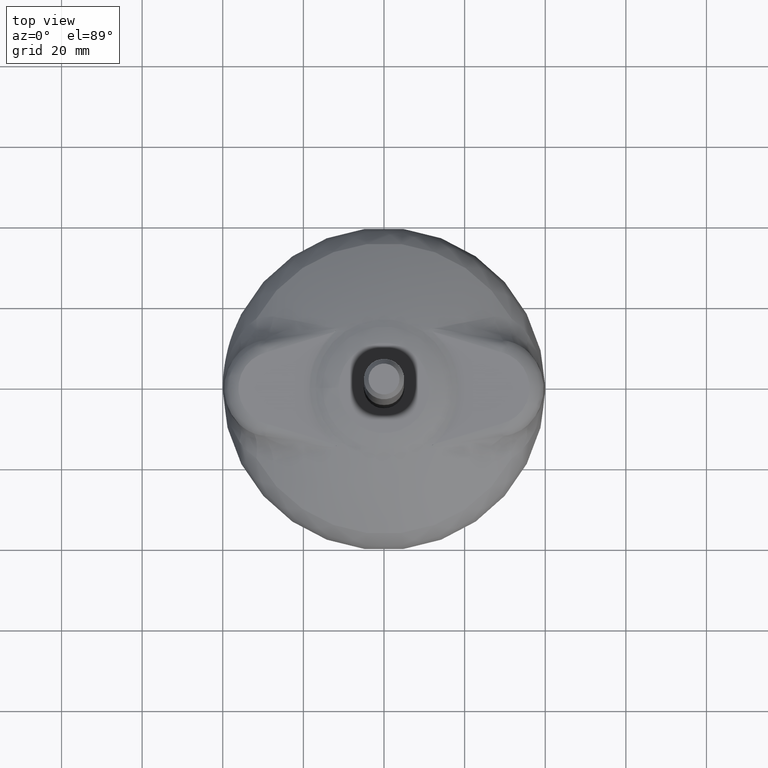
[diagram: clean part render]
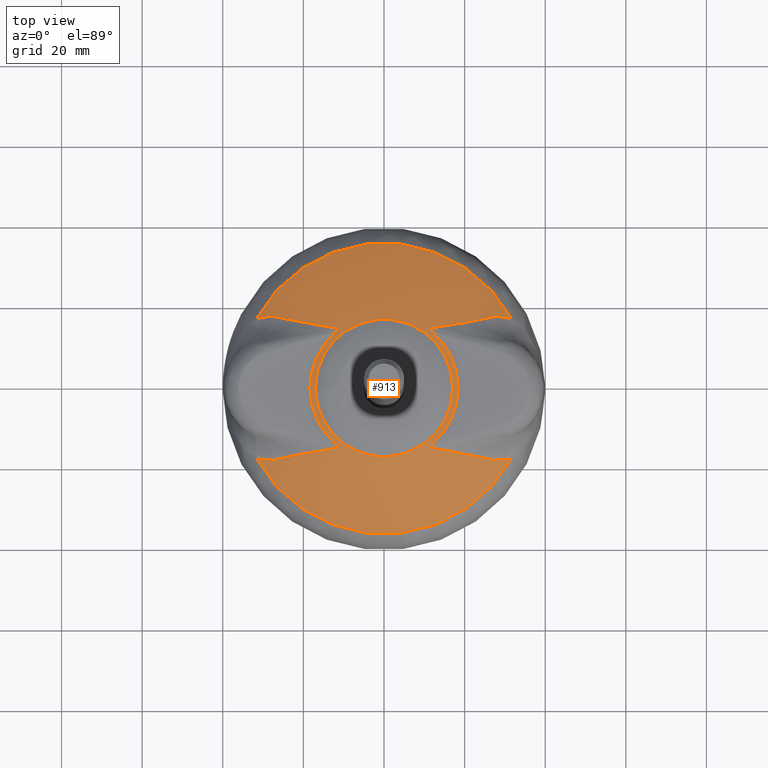
[diagram: same view with one face highlighted and labeled with its STEP entity id]
A machine part, top view. The second image highlights one B-rep face of the part: STEP entity #913.
In plain terms, the highlighted face is a freeform B-spline surface patch.
Its self-contained STEP definition (entity closure, byte-faithful):
#230=CARTESIAN_POINT('',(-31.670608063735607,17.322779333986198,6.870353843586874));
#231=VERTEX_POINT('',#230);
#267=CARTESIAN_POINT('',(31.670607779881095,17.322778184760260,6.870358049720028));
#268=VERTEX_POINT('',#267);
#269=CARTESIAN_POINT('',(-0.000000912443235,-4.555379E-014,6.870355946653386));
#270=DIRECTION('',(0.000000066404364,0.0,-0.999999999999998));
#271=DIRECTION('',(-0.999999999999998,0.0,-0.000000066404364));
#272=AXIS2_PLACEMENT_3D('',#269,#270,#271);
#273=CIRCLE('',#272,36.098560498766552);
#274=EDGE_CURVE('',#231,#268,#273,.T.);
#401=CARTESIAN_POINT('',(-36.098563187358586,-0.000002042043089,6.870352217814563));
#402=CARTESIAN_POINT('',(-27.157767389506262,-0.000001536275291,12.204049208350103));
#403=CARTESIAN_POINT('',(-17.051753825760038,-0.000000964592834,14.704977622983128));
#404=CARTESIAN_POINT('',(-36.098565229401736,36.098562731137150,6.870352217814430));
#405=CARTESIAN_POINT('',(-27.157768925781578,27.157766579104077,12.204049208350005));
#406=CARTESIAN_POINT('',(-17.051754790352852,17.051752849285297,14.704977622983066));
#407=CARTESIAN_POINT('',(-0.000000456221526,36.098562731137143,6.870354614916660));
#408=CARTESIAN_POINT('',(-0.000000810402243,27.157766579104070,12.204051011744317));
#409=CARTESIAN_POINT('',(-0.000000976474760,17.051752849285290,14.704978755293928));
#410=CARTESIAN_POINT('',(36.098562274915579,36.098562731137136,6.870357012018752));
#411=CARTESIAN_POINT('',(27.157765768701807,27.157766579104059,12.204052815138530));
#412=CARTESIAN_POINT('',(17.051751872810538,17.051752849285272,14.704979887604722));
#413=CARTESIAN_POINT('',(36.098562274915579,-4.555379E-014,6.870357012018754));
#414=CARTESIAN_POINT('',(27.157765768701811,-4.555379E-014,12.204052815138530));
#415=CARTESIAN_POINT('',(17.051751872810538,-4.555379E-014,14.704979887604722));
#416=CARTESIAN_POINT('',(36.098562274915565,-36.098562731137235,6.870357012018755));
#417=CARTESIAN_POINT('',(27.157765768701793,-27.157766579104166,12.204052815138532));
#418=CARTESIAN_POINT('',(17.051751872810513,-17.051752849285386,14.704979887604731));
#419=CARTESIAN_POINT('',(-0.000000456221526,-36.098562731137235,6.870354614916660));
#420=CARTESIAN_POINT('',(-0.000000810402243,-27.157766579104162,12.204051011744317));
#421=CARTESIAN_POINT('',(-0.000000976474760,-17.051752849285382,14.704978755293928));
#422=CARTESIAN_POINT('',(-36.098565229401750,-36.098562731137235,6.870352217814430));
#423=CARTESIAN_POINT('',(-27.157768925781600,-27.157766579104155,12.204049208350005));
#424=CARTESIAN_POINT('',(-17.051754790352881,-17.051752849285361,14.704977622983066));
#425=CARTESIAN_POINT('',(-36.098563187358579,0.000002042042998,6.870352217814561));
#426=CARTESIAN_POINT('',(-27.157767389506262,0.000001536275200,12.204049208350101));
#427=CARTESIAN_POINT('',(-17.051753825760034,0.000000964592743,14.704977622983124));
#435=(BOUNDED_SURFACE()B_SPLINE_SURFACE(2,2,((#401,#404,#407,#410,#413,#416,#419,#422,#425),(#402,#405,#408,#411,#414,#417,#420,#423,#426),(#403,#406,#409,#412,#415,#418,#421,#424,#427)),.UNSPECIFIED.,.F.,.T.,.U.)B_SPLINE_SURFACE_WITH_KNOTS((3,3),(3,2,2,2,3),(0.828202450414018,0.920397019531167),(-1.000000E-008,0.250000000000000,0.500000000000000,0.750000000000000,1.000000010000000),.UNSPECIFIED.)GEOMETRIC_REPRESENTATION_ITEM()RATIONAL_B_SPLINE_SURFACE(((0.932795064101072,0.659585688899780,0.932795042244324,0.659585699828154,0.932795042244324,0.659585699828154,0.932795042244324,0.659585688899780,0.932795064101072),(0.931649516716693,0.658775664608516,0.931649494886787,0.658775675523469,0.931649494886787,0.658775675523469,0.931649494886787,0.658775664608516,0.931649516716693),(0.951087804349974,0.672520609058866,0.951087782064601,0.672520620201552,0.951087782064601,0.672520620201552,0.951087782064601,0.672520609058866,0.951087804349974)))REPRESENTATION_ITEM('')SURFACE());
#436=CARTESIAN_POINT('',(-17.051757841701679,-4.450967E-014,14.704976749984406));
#437=VERTEX_POINT('',#436);
#438=CARTESIAN_POINT('',(-18.373594954239721,4.054860E-014,14.364150781865865));
#439=VERTEX_POINT('',#438);
#440=CARTESIAN_POINT('',(-0.236152598842409,-4.555379E-014,-53.245265609674149));
#441=DIRECTION('',(0.0,-1.0,0.0));
#442=DIRECTION('',(-0.999999999999998,0.0,-0.000000066404364));
#443=AXIS2_PLACEMENT_3D('',#440,#441,#442);
#444=CIRCLE('',#443,70.0);
#445=EDGE_CURVE('',#437,#439,#444,.T.);
#446=ORIENTED_EDGE('',*,*,#445,.F.);
#447=CARTESIAN_POINT('',(17.051753963977553,-4.555379E-014,14.704979128457763));
#448=VERTEX_POINT('',#447);
#449=CARTESIAN_POINT('',(-0.000001952949424,-4.555379E-014,14.704977996146756));
#450=DIRECTION('',(0.000000066404364,0.0,-0.999999999999998));
#451=DIRECTION('',(-0.999999999999998,0.0,-0.000000066404364));
#452=AXIS2_PLACEMENT_3D('',#449,#450,#451);
#453=CIRCLE('',#452,17.051755916927018);
#454=EDGE_CURVE('',#437,#448,#453,.T.);
#455=ORIENTED_EDGE('',*,*,#454,.T.);
#456=CARTESIAN_POINT('',(-0.000001952949424,-4.555379E-014,14.704977996146756));
#457=DIRECTION('',(0.000000066404364,0.0,-0.999999999999998));
#458=DIRECTION('',(-0.999999999999998,0.0,-0.000000066404364));
#459=AXIS2_PLACEMENT_3D('',#456,#457,#458);
#460=CIRCLE('',#459,17.051755916927018);
#461=EDGE_CURVE('',#448,#437,#460,.T.);
#462=ORIENTED_EDGE('',*,*,#461,.T.);
#463=ORIENTED_EDGE('',*,*,#445,.T.);
#464=CARTESIAN_POINT('',(-12.247432578563680,-13.696327065648529,14.364151188669789));
#465=VERTEX_POINT('',#464);
#466=CARTESIAN_POINT('',(-18.373594954239735,8.359979E-014,14.364150781865868));
#467=CARTESIAN_POINT('',(-18.373594954239746,-1.287970202973881,14.364150781865868));
#468=CARTESIAN_POINT('',(-18.237669955148181,-2.575898510034245,14.364150790891880));
#469=CARTESIAN_POINT('',(-17.699941602305984,-5.095088299142003,14.364150826599390));
#470=CARTESIAN_POINT('',(-17.298155740125061,-6.326267835382335,14.364150853279728));
#471=CARTESIAN_POINT('',(-16.246392451917050,-8.677706322898654,14.364150923121400));
#472=CARTESIAN_POINT('',(-15.596449238314829,-9.797888785088563,14.364150966280471));
#473=CARTESIAN_POINT('',(-14.076993868976174,-11.877966753719326,14.364151067178932));
#474=CARTESIAN_POINT('',(-13.207531139049966,-12.837794598061581,14.364151124915049));
#475=CARTESIAN_POINT('',(-12.247432578563680,-13.696327065648529,14.364151188669789));
#476=B_SPLINE_CURVE_WITH_KNOTS('',3,(#466,#467,#468,#469,#470,#471,#472,#473,#474,#475),.UNSPECIFIED.,.F.,.U.,(4,2,2,2,4),(0.500000000000000,0.625000000000000,0.750000000000000,0.875000000000000,1.0),.UNSPECIFIED.);
#477=EDGE_CURVE('',#439,#465,#476,.T.);
#478=ORIENTED_EDGE('',*,*,#477,.T.);
#479=CARTESIAN_POINT('',(-27.431562965353095,-17.807966598824571,8.769060720168445));
#480=VERTEX_POINT('',#479);
#481=CARTESIAN_POINT('',(-12.247432578563680,-13.696327065648561,14.364151188669789));
#482=CARTESIAN_POINT('',(-12.209535022431201,-13.730511130413010,14.364059328238302));
#483=CARTESIAN_POINT('',(-12.136360605517600,-13.796515360293478,14.363881959716503));
#484=CARTESIAN_POINT('',(-12.032749397972699,-13.894463007982626,14.362338082359150));
#485=CARTESIAN_POINT('',(-11.938865075444202,-13.987456943491921,14.359836653989419));
#486=CARTESIAN_POINT('',(-11.854922923860427,-14.075845492114420,14.356301946927539));
#487=CARTESIAN_POINT('',(-11.780984211823082,-14.159793950149657,14.351749854382518));
#488=CARTESIAN_POINT('',(-11.717140091279559,-14.239490840293740,14.346172548386591));
#489=CARTESIAN_POINT('',(-11.663463799991446,-14.315100714236717,14.339566289172632));
#490=CARTESIAN_POINT('',(-11.620044280804239,-14.386787447930237,14.331918556463652));
#491=CARTESIAN_POINT('',(-11.586930355474319,-14.454695216393452,14.323222108839076));
#492=CARTESIAN_POINT('',(-11.564354429648988,-14.519021450628079,14.313421444202792));
#493=CARTESIAN_POINT('',(-11.550430157384159,-14.588119556327561,14.301078900307237));
#494=CARTESIAN_POINT('',(-11.553044938373469,-14.663943019381900,14.284429418489230));
#495=CARTESIAN_POINT('',(-11.584549362550490,-14.742671417081434,14.262173167536067));
#496=CARTESIAN_POINT('',(-11.642812258664648,-14.812960623291852,14.237082780925121));
#497=CARTESIAN_POINT('',(-11.726576335339400,-14.875208990709439,14.209241509287008));
#498=CARTESIAN_POINT('',(-11.835807737429079,-14.929998527274282,14.178452270727139));
#499=CARTESIAN_POINT('',(-11.952350844153548,-14.970698014784158,14.149222809024135));
#500=CARTESIAN_POINT('',(-12.073591307226511,-15.002749533218822,14.120826762435239));
#501=CARTESIAN_POINT('',(-12.198144869719481,-15.030104804696640,14.092648079827748));
#502=CARTESIAN_POINT('',(-12.344637549974028,-15.057188830827812,14.060308182735520));
#503=CARTESIAN_POINT('',(-12.534074952911160,-15.086114679327812,14.019360565909178));
#504=CARTESIAN_POINT('',(-12.754817015084408,-15.115834258938472,13.971795105643531));
#505=CARTESIAN_POINT('',(-12.995035719404409,-15.146227438206802,13.919532897910397));
#506=CARTESIAN_POINT('',(-13.222425532582260,-15.172664204044798,13.869744874307738));
#507=CARTESIAN_POINT('',(-13.436723542229092,-15.195838926446347,13.822467645782741));
#508=CARTESIAN_POINT('',(-13.637732851249041,-15.216168666064728,13.777780866910941));
#509=CARTESIAN_POINT('',(-13.825266105018391,-15.234104839738700,13.735748086306472));
#510=CARTESIAN_POINT('',(-13.999157752461210,-15.250053996081428,13.696431580892106));
#511=CARTESIAN_POINT('',(-14.159258562805670,-15.264401056880541,13.659887791686440));
#512=CARTESIAN_POINT('',(-14.305438087001448,-15.277485673043639,13.626171718573920));
#513=CARTESIAN_POINT('',(-14.437574141206170,-15.289661518079971,13.595325363513320));
#514=CARTESIAN_POINT('',(-14.555581997113123,-15.301105110784059,13.567414380448469));
#515=CARTESIAN_POINT('',(-14.718087568962920,-15.318816820982558,13.528249954362428));
#516=CARTESIAN_POINT('',(-14.930604250582601,-15.344618261225680,13.475806443870601));
#517=CARTESIAN_POINT('',(-15.198874921888493,-15.378714290624378,13.408106014042957));
#518=CARTESIAN_POINT('',(-15.469994659787062,-15.415529024287400,13.337965857544001));
#519=CARTESIAN_POINT('',(-15.744020489204710,-15.454831897932673,13.265378396274002));
#520=CARTESIAN_POINT('',(-16.020958973693332,-15.496686164570118,13.190278968594560));
#521=CARTESIAN_POINT('',(-16.300825861063039,-15.541077840614951,13.112617040797971));
#522=CARTESIAN_POINT('',(-16.583629835601851,-15.588017179089359,13.032336759710432));
#523=CARTESIAN_POINT('',(-16.869377002290371,-15.637511025204919,12.949382277508681));
#524=CARTESIAN_POINT('',(-17.158069721533405,-15.689570383749190,12.863696318146561));
#525=CARTESIAN_POINT('',(-17.449706912790141,-15.744208612175012,12.775220549960499));
#526=CARTESIAN_POINT('',(-17.744284227848805,-15.801441199988719,12.683895622231990));
#527=CARTESIAN_POINT('',(-18.041793213153646,-15.861288797054439,12.589660696570911));
#528=CARTESIAN_POINT('',(-18.342224715265729,-15.923765311873172,12.492455390774989));
#529=CARTESIAN_POINT('',(-18.645556016757389,-15.988923490687872,12.392212412020600));
#530=CARTESIAN_POINT('',(-19.151273571591201,-16.100816212915820,12.221583181725650));
#531=CARTESIAN_POINT('',(-19.895574484920431,-16.277070208686681,11.959596393791053));
#532=CARTESIAN_POINT('',(-20.914767103770810,-16.528254198335723,11.580587719184038));
#533=CARTESIAN_POINT('',(-22.052226728808417,-16.808541663716781,11.134818604917410));
#534=CARTESIAN_POINT('',(-23.008171691446599,-17.036119908293553,10.740583737537641));
#535=CARTESIAN_POINT('',(-23.823831473400123,-17.224875934470401,10.392042277183350));
#536=CARTESIAN_POINT('',(-24.541404446600115,-17.381342645522814,10.079668404611878));
#537=CARTESIAN_POINT('',(-25.229973966764767,-17.517358305047491,9.772511083030707));
#538=CARTESIAN_POINT('',(-25.802793103988471,-17.617932359903982,9.512879305751792));
#539=CARTESIAN_POINT('',(-26.172117007930034,-17.675255219971763,9.344815878959579));
#540=CARTESIAN_POINT('',(-26.518943118022513,-17.722521592098190,9.186404765937716));
#541=CARTESIAN_POINT('',(-26.843224836896603,-17.759953869253891,9.038026949876812));
#542=CARTESIAN_POINT('',(-27.144799582619516,-17.788937406331829,8.899963532668823));
#543=CARTESIAN_POINT('',(-27.338566061821439,-17.801795462322893,8.811512291600181));
#544=CARTESIAN_POINT('',(-27.431562965353095,-17.807966598824571,8.769060720168445));
#545=B_SPLINE_CURVE_WITH_KNOTS('',3,(#481,#482,#483,#484,#485,#486,#487,#488,#489,#490,#491,#492,#493,#494,#495,#496,#497,#498,#499,#500,#501,#502,#503,#504,#505,#506,#507,#508,#509,#510,#511,#512,#513,#514,#515,#516,#517,#518,#519,#520,#521,#522,#523,#524,#525,#526,#527,#528,#529,#530,#531,#532,#533,#534,#535,#536,#537,#538,#539,#540,#541,#542,#543,#544),.UNSPECIFIED.,.F.,.U.,(4,1,1,1,1,1,1,1,1,1,1,1,1,1,1,1,1,1,1,1,1,1,1,1,1,1,1,1,1,1,1,1,1,1,1,1,1,1,1,1,1,1,1,1,1,1,1,1,1,1,1,1,1,1,1,1,1,1,1,1,1,4),(0.0,0.008292391881651,0.016011347503199,0.023165442006629,0.029764769015969,0.035821589461814,0.041351260382119,0.046373577169765,0.050914716600433,0.055010010532940,0.058707729337268,0.062073692720014,0.066595742302627,0.071114369024664,0.076067554770240,0.081801893005922,0.088552777557252,0.096474009755656,0.102372304421441,0.109438684238801,0.117688970520720,0.127137823919921,0.141275550584050,0.154694681351300,0.167385871065076,0.179340289761011,0.190549642044612,0.201006188119090,0.210702767905062,0.219632830528004,0.227790472936657,0.235170494185218,0.241768477345151,0.247580922360831,0.262482362607235,0.277579823596465,0.292876550625332,0.308375607544293,0.324079887104652,0.339992121073255,0.356114890097018,0.372450633305467,0.389001657644244,0.405770146936791,0.422758170674661,0.439967692539788,0.457400578664188,0.475058605634304,0.492943468248481,0.546006062550361,0.606414767446673,0.674269518671345,0.749655863342620,0.778437020189345,0.821618333952772,0.879328090872367,0.902905707012618,0.925100256870497,0.945908937767815,0.965329448249537,0.983360104545392,1.0),.UNSPECIFIED.);
#546=EDGE_CURVE('',#465,#480,#545,.T.);
#547=ORIENTED_EDGE('',*,*,#546,.T.);
#548=CARTESIAN_POINT('',(-31.670608063735905,-17.322779333985757,6.870353843586874));
#549=VERTEX_POINT('',#548);
#550=CARTESIAN_POINT('',(-27.431562965339928,-17.807966598823779,8.769060720174448));
#551=CARTESIAN_POINT('',(-27.490741807464161,-17.811194392083685,8.742093097649024));
#552=CARTESIAN_POINT('',(-27.609272950932670,-17.817659439594681,8.688078807746972));
#553=CARTESIAN_POINT('',(-27.787528676009096,-17.824070958043038,8.607010178694921));
#554=CARTESIAN_POINT('',(-27.966431333313455,-17.828067161521080,8.525766957290497));
#555=CARTESIAN_POINT('',(-28.145991814239657,-17.829386545526170,8.444356910375934));
#556=CARTESIAN_POINT('',(-28.326200239836869,-17.828068623349502,8.362782265786615));
#557=CARTESIAN_POINT('',(-28.507051612511940,-17.824071833270185,8.281046726171697));
#558=CARTESIAN_POINT('',(-28.688538903267830,-17.817376410702806,8.199153580664570));
#559=CARTESIAN_POINT('',(-28.870654906489243,-17.807956690554335,8.117106213333264));
#560=CARTESIAN_POINT('',(-29.053391733727370,-17.795788571019809,8.034907966204340));
#561=CARTESIAN_POINT('',(-29.236740943446158,-17.780847507099747,7.952562176123021));
#562=CARTESIAN_POINT('',(-29.420693499414842,-17.763109055405444,7.870072164813567));
#563=CARTESIAN_POINT('',(-29.605239775491839,-17.742548732580229,7.787441241440993));
#564=CARTESIAN_POINT('',(-29.790369547211789,-17.719142055783145,7.704672702222714));
#565=CARTESIAN_POINT('',(-29.976071989675557,-17.692864546173759,7.621769829270799));
#566=CARTESIAN_POINT('',(-30.162335663573735,-17.663691698101971,7.538735895530723));
#567=CARTESIAN_POINT('',(-30.349148542777392,-17.631599125034491,7.455574145955227));
#568=CARTESIAN_POINT('',(-30.536497886673221,-17.596562029391652,7.372287868246043));
#569=CARTESIAN_POINT('',(-30.724370696087647,-17.558557218420045,7.288880126816165));
#570=CARTESIAN_POINT('',(-30.912751975075771,-17.517555546710600,7.205354763100509));
#571=CARTESIAN_POINT('',(-31.101631244428582,-17.473550362772023,7.121712633464374));
#572=CARTESIAN_POINT('',(-31.290978017581192,-17.426450531835819,7.037965760284703));
#573=CARTESIAN_POINT('',(-31.480834039856440,-17.376482922534620,6.954084093853320));
#574=CARTESIAN_POINT('',(-31.607233503107768,-17.340713513062820,6.898315351244489));
#575=CARTESIAN_POINT('',(-31.670608063735848,-17.322779333985686,6.870353843586909));
#576=B_SPLINE_CURVE_WITH_KNOTS('',3,(#550,#551,#552,#553,#554,#555,#556,#557,#558,#559,#560,#561,#562,#563,#564,#565,#566,#567,#568,#569,#570,#571,#572,#573,#574,#575),.UNSPECIFIED.,.F.,.U.,(4,1,1,1,1,1,1,1,1,1,1,1,1,1,1,1,1,1,1,1,1,1,1,4),(0.0,0.041658390735246,0.083438886461157,0.125347578934819,0.167390591912307,0.209574077912924,0.251904214981785,0.294387203457756,0.337029262753698,0.379836628155768,0.422815547648458,0.465972278771680,0.509313085516173,0.552844235263043,0.596571995773059,0.640502632231119,0.684642404350780,0.728997563543497,0.773574350156928,0.818378990786223,0.863417695661852,0.908696656117121,0.954222042138362,1.0),.UNSPECIFIED.);
#577=EDGE_CURVE('',#480,#549,#576,.T.);
#578=ORIENTED_EDGE('',*,*,#577,.T.);
#579=CARTESIAN_POINT('',(31.670607779879436,-17.322778184763369,6.870358049720028));
#580=VERTEX_POINT('',#579);
#581=CARTESIAN_POINT('',(-0.000000912443235,-4.555379E-014,6.870355946653386));
#582=DIRECTION('',(0.000000066404364,0.0,-0.999999999999998));
#583=DIRECTION('',(-0.999999999999998,0.0,-0.000000066404364));
#584=AXIS2_PLACEMENT_3D('',#581,#582,#583);
#585=CIRCLE('',#584,36.098560498766552);
#586=EDGE_CURVE('',#580,#549,#585,.T.);
#587=ORIENTED_EDGE('',*,*,#586,.F.);
#588=CARTESIAN_POINT('',(27.431563427099782,-17.807964604758869,8.769064217587552));
#589=VERTEX_POINT('',#588);
#590=CARTESIAN_POINT('',(31.670607779879436,-17.322778184763362,6.870358049720028));
#591=CARTESIAN_POINT('',(31.609869243500690,-17.339977769021566,6.897156178044071));
#592=CARTESIAN_POINT('',(31.488713609734834,-17.374285914320303,6.950610614295113));
#593=CARTESIAN_POINT('',(31.306743474344977,-17.422361476896651,7.031002369149613));
#594=CARTESIAN_POINT('',(31.125239835309355,-17.467801540977295,7.111270549906239));
#595=CARTESIAN_POINT('',(30.944163770804757,-17.510396658513795,7.191442897820832));
#596=CARTESIAN_POINT('',(30.763542794041257,-17.550229653066683,7.271508487494335));
#597=CARTESIAN_POINT('',(30.583386071637051,-17.587305673946179,7.351466660297248));
#598=CARTESIAN_POINT('',(30.403706971362748,-17.621650556227337,7.431314013380404));
#599=CARTESIAN_POINT('',(30.224517071028220,-17.653284658349499,7.511047859717100));
#600=CARTESIAN_POINT('',(30.045827757035976,-17.682229815429750,7.590665307836723));
#601=CARTESIAN_POINT('',(29.867649804261902,-17.708507484595071,7.670163506639564));
#602=CARTESIAN_POINT('',(29.689993492977674,-17.732139233685629,7.749539580274432));
#603=CARTESIAN_POINT('',(29.512868582930405,-17.753146606429805,7.828790645485102));
#604=CARTESIAN_POINT('',(29.336284325407199,-17.771551154562790,7.907913806997820));
#605=CARTESIAN_POINT('',(29.160249465423732,-17.787374422608487,7.986906158811317));
#606=CARTESIAN_POINT('',(28.984772245798876,-17.800637956892146,8.065764783707216));
#607=CARTESIAN_POINT('',(28.809860413602895,-17.811363265808225,8.144486754015341));
#608=CARTESIAN_POINT('',(28.635521215412325,-17.819571950861750,8.223069129153359));
#609=CARTESIAN_POINT('',(28.461761434849041,-17.825285207396650,8.301508964765151));
#610=CARTESIAN_POINT('',(28.288587273049512,-17.828525665122974,8.379803278907369));
#611=CARTESIAN_POINT('',(28.116004812447123,-17.829310541882915,8.457949177694136));
#612=CARTESIAN_POINT('',(27.944018314382799,-17.827677057687577,8.535943388779275));
#613=CARTESIAN_POINT('',(27.772636562703006,-17.823588023453020,8.613783994341478));
#614=CARTESIAN_POINT('',(27.601849316211052,-17.817282586717646,8.691463992821777));
#615=CARTESIAN_POINT('',(27.488272399029587,-17.811067699090977,8.743221624340654));
#616=CARTESIAN_POINT('',(27.431563427098290,-17.807964604758759,8.769064217588245));
#617=B_SPLINE_CURVE_WITH_KNOTS('',3,(#590,#591,#592,#593,#594,#595,#596,#597,#598,#599,#600,#601,#602,#603,#604,#605,#606,#607,#608,#609,#610,#611,#612,#613,#614,#615,#616),.UNSPECIFIED.,.F.,.U.,(4,1,1,1,1,1,1,1,1,1,1,1,1,1,1,1,1,1,1,1,1,1,1,1,4),(0.0,0.043875628767773,0.087519060009767,0.130935701924292,0.174130982873388,0.217110349478515,0.259879264650162,0.302443205553149,0.344807661509659,0.386978131842314,0.428960123659985,0.470759149588914,0.512380725452503,0.553830367903017,0.595113592008724,0.636235908800458,0.677202822781525,0.718019829405285,0.758692412524861,0.799226041819610,0.839626170203191,0.879898231218099,0.920047636421815,0.960079772769735,1.0),.UNSPECIFIED.);
#618=EDGE_CURVE('',#580,#589,#617,.T.);
#619=ORIENTED_EDGE('',*,*,#618,.T.);
#620=CARTESIAN_POINT('',(12.247444714455680,-13.696322640014932,14.364151188964252));
#621=VERTEX_POINT('',#620);
#622=CARTESIAN_POINT('',(27.431563427099782,-17.807964604758869,8.769064217587552));
#623=CARTESIAN_POINT('',(27.376738616092361,-17.804495144824191,8.794078525479844));
#624=CARTESIAN_POINT('',(27.264297681631980,-17.797379583275330,8.845380702406780));
#625=CARTESIAN_POINT('',(27.091702465293217,-17.783297263258305,8.924311750900246));
#626=CARTESIAN_POINT('',(26.910934085233283,-17.766307711412963,9.007034990690197));
#627=CARTESIAN_POINT('',(26.722029557328472,-17.746041432019517,9.093497758572804));
#628=CARTESIAN_POINT('',(26.525001980031526,-17.722450761240360,9.183630583620353));
#629=CARTESIAN_POINT('',(26.319873807117194,-17.695388817998655,9.277364657207375));
#630=CARTESIAN_POINT('',(26.106665916780408,-17.664736163772030,9.374625800618469));
#631=CARTESIAN_POINT('',(25.885407028398287,-17.630341405003755,9.475340136503185));
#632=CARTESIAN_POINT('',(25.656107006068957,-17.592129832768361,9.579416772706429));
#633=CARTESIAN_POINT('',(25.299087654116132,-17.528296538096644,9.741033392899354));
#634=CARTESIAN_POINT('',(24.846220282350821,-17.441149203372820,9.944003668760669));
#635=CARTESIAN_POINT('',(24.329014389934180,-17.334387407405526,10.172116401950520));
#636=CARTESIAN_POINT('',(23.899007052820735,-17.240372873985272,10.359227474851439));
#637=CARTESIAN_POINT('',(23.555682918746552,-17.162209079216979,10.506875461669798));
#638=CARTESIAN_POINT('',(23.072384545065429,-17.050009471749295,10.712490012484952));
#639=CARTESIAN_POINT('',(22.437343405308091,-16.900182402409023,10.976527759972257));
#640=CARTESIAN_POINT('',(21.638825488143521,-16.706192330858126,11.297448544375541));
#641=CARTESIAN_POINT('',(20.893063197676465,-16.522636715057779,11.586945266549421));
#642=CARTESIAN_POINT('',(20.199732008321650,-16.352019923402160,11.846812861123242));
#643=CARTESIAN_POINT('',(19.558367143189511,-16.196803928800652,12.078706849533360));
#644=CARTESIAN_POINT('',(18.957434930008233,-16.057126552545846,12.287884796474259));
#645=CARTESIAN_POINT('',(18.382776039822225,-15.931782740305206,12.479986377639662));
#646=CARTESIAN_POINT('',(17.821090097765602,-15.816164259121161,12.660525778364823));
#647=CARTESIAN_POINT('',(17.269589611484157,-15.709784323266422,12.830801779548718));
#648=CARTESIAN_POINT('',(16.728346451347278,-15.612430035663881,12.991224926735132));
#649=CARTESIAN_POINT('',(16.197353224247170,-15.524081669617832,13.142164441698133));
#650=CARTESIAN_POINT('',(15.676605697221628,-15.444479149144749,13.284027544567294));
#651=CARTESIAN_POINT('',(15.165912631854642,-15.374296328300328,13.417033943483712));
#652=CARTESIAN_POINT('',(14.775025821355138,-15.324855892653872,13.514665993930510));
#653=CARTESIAN_POINT('',(14.490000605639541,-15.294589032473748,13.583034995827370));
#654=CARTESIAN_POINT('',(14.297475643876890,-15.276940540967180,13.628043557011290));
#655=CARTESIAN_POINT('',(14.073372457126847,-15.256917555504739,13.679578836688671));
#656=CARTESIAN_POINT('',(13.818047262924228,-15.233726452722198,13.737413977293198));
#657=CARTESIAN_POINT('',(13.532002892455271,-15.206000954431889,13.801380395486280));
#658=CARTESIAN_POINT('',(13.215796667099028,-15.172443202755142,13.871245587476512));
#659=CARTESIAN_POINT('',(12.870163332104628,-15.131170137560940,13.946838635297002));
#660=CARTESIAN_POINT('',(12.573289870893761,-15.092094692291814,14.010890860597588));
#661=CARTESIAN_POINT('',(12.342696117402070,-15.056905065911362,14.060724838017460));
#662=CARTESIAN_POINT('',(12.195270767388649,-15.029556853419461,14.093285004219386));
#663=CARTESIAN_POINT('',(12.070050672076123,-15.001941056459378,14.121632899330399));
#664=CARTESIAN_POINT('',(11.940154859724062,-14.967396002255114,14.152093071427061));
#665=CARTESIAN_POINT('',(11.810274591508259,-14.920496012526618,14.184968769163911));
#666=CARTESIAN_POINT('',(11.687758128571549,-14.851586887417701,14.221044169001022));
#667=CARTESIAN_POINT('',(11.601583702246394,-14.770788627717838,14.253227984851486));
#668=CARTESIAN_POINT('',(11.553782839062372,-14.676110933274643,14.281704985292588));
#669=CARTESIAN_POINT('',(11.549493724676843,-14.579311607562371,14.303124608764421));
#670=CARTESIAN_POINT('',(11.572906659925470,-14.487281023938840,14.318714535958531));
#671=CARTESIAN_POINT('',(11.613442830840182,-14.396303631604772,14.331051742908874));
#672=CARTESIAN_POINT('',(11.673256618053690,-14.298630840701993,14.341358040124243));
#673=CARTESIAN_POINT('',(11.751908372692219,-14.193664898499980,14.349754364740937));
#674=CARTESIAN_POINT('',(11.849298642739461,-14.080948695150024,14.356256597588470));
#675=CARTESIAN_POINT('',(11.965269079658542,-13.960045226167461,14.360853517561219));
#676=CARTESIAN_POINT('',(12.099419801289150,-13.830214393111612,14.363673995754050));
#677=CARTESIAN_POINT('',(12.196487763129539,-13.742414310663928,14.363986917216568));
#678=CARTESIAN_POINT('',(12.247444714455680,-13.696322640014932,14.364151188964252));
#679=B_SPLINE_CURVE_WITH_KNOTS('',3,(#622,#623,#624,#625,#626,#627,#628,#629,#630,#631,#632,#633,#634,#635,#636,#637,#638,#639,#640,#641,#642,#643,#644,#645,#646,#647,#648,#649,#650,#651,#652,#653,#654,#655,#656,#657,#658,#659,#660,#661,#662,#663,#664,#665,#666,#667,#668,#669,#670,#671,#672,#673,#674,#675,#676,#677,#678),.UNSPECIFIED.,.F.,.U.,(4,1,1,1,1,1,1,1,1,1,1,1,1,1,1,1,1,1,1,1,1,1,1,1,1,1,1,1,1,1,1,1,1,1,1,1,1,1,1,1,1,1,1,1,1,1,1,1,1,1,1,1,1,1,4),(0.0,0.009808038532540,0.020115436744011,0.030922127325308,0.042227920652781,0.054032522092510,0.066335545984403,0.079136527092206,0.092434930101377,0.106230157600998,0.120521556880394,0.156952776908474,0.188099342141703,0.213995073329592,0.234667821444451,0.250139739887449,0.301263636320385,0.349036746895604,0.393482924131421,0.434627897056652,0.472500182559318,0.507132400863643,0.540477623495956,0.573036028176635,0.604819450859575,0.635840889078872,0.666114692669166,0.695656765662273,0.724484779568187,0.752618397784696,0.761608132646262,0.772364189035361,0.784872441355924,0.799114745920977,0.815069531182010,0.832712127302965,0.852014983097498,0.872947832974567,0.882465538449111,0.890769736742119,0.897875428742445,0.903798841486223,0.913159622298781,0.920867843514256,0.927240557077408,0.932798208121172,0.938275592587974,0.942967032600220,0.948336340075480,0.954521443463313,0.961612389214657,0.969669188998409,0.978733530770539,0.988835920556503,1.0),.UNSPECIFIED.);
#680=EDGE_CURVE('',#589,#621,#679,.T.);
#681=ORIENTED_EDGE('',*,*,#680,.T.);
#682=CARTESIAN_POINT('',(12.247444714455559,13.696322640014992,14.364151188964238));
#683=VERTEX_POINT('',#682);
#684=CARTESIAN_POINT('',(12.247444714455693,-13.696322640014969,14.364151188964238));
#685=CARTESIAN_POINT('',(13.207542131151332,-12.837789933367199,14.364151252718901));
#686=CARTESIAN_POINT('',(14.077003771438942,-11.877962059193360,14.364151310454940));
#687=CARTESIAN_POINT('',(15.596457183566674,-9.797884377929581,14.364151411353280));
#688=CARTESIAN_POINT('',(16.246399529831663,-8.677702232694166,14.364151454512291));
#689=CARTESIAN_POINT('',(17.298161393261580,-6.326264626812876,14.364151524353868));
#690=CARTESIAN_POINT('',(17.699946698166642,-5.095085654959052,14.364151551034160));
#691=CARTESIAN_POINT('',(18.237674301615151,-2.575897123664133,14.364151586741622));
#692=CARTESIAN_POINT('',(18.373599108673929,-1.287969509704900,14.364151595767620));
#693=CARTESIAN_POINT('',(18.373599108673922,1.287969509704976,14.364151595767620));
#694=CARTESIAN_POINT('',(18.237674301615122,2.575897123664216,14.364151586741622));
#695=CARTESIAN_POINT('',(17.699946698166588,5.095085654959128,14.364151551034160));
#696=CARTESIAN_POINT('',(17.298161393261530,6.326264626812942,14.364151524353868));
#697=CARTESIAN_POINT('',(16.246399529831571,8.677702232694221,14.364151454512291));
#698=CARTESIAN_POINT('',(15.596457183566574,9.797884377929639,14.364151411353280));
#699=CARTESIAN_POINT('',(14.077003771438820,11.877962059193401,14.364151310454940));
#700=CARTESIAN_POINT('',(13.207542131151209,12.837789933367239,14.364151252718901));
#701=CARTESIAN_POINT('',(12.247444714455559,13.696322640015001,14.364151188964238));
#702=B_SPLINE_CURVE_WITH_KNOTS('',3,(#684,#685,#686,#687,#688,#689,#690,#691,#692,#693,#694,#695,#696,#697,#698,#699,#700,#701),.UNSPECIFIED.,.F.,.U.,(4,2,2,2,2,2,2,2,4),(0.0,0.125000000000000,0.250000000000000,0.375000000000000,0.500000000000000,0.625000000000000,0.750000000000000,0.875000000000000,1.0),.UNSPECIFIED.);
#703=EDGE_CURVE('',#621,#683,#702,.T.);
#704=ORIENTED_EDGE('',*,*,#703,.T.);
#705=CARTESIAN_POINT('',(27.431563427099753,17.807964604758883,8.769064217587536));
#706=VERTEX_POINT('',#705);
#707=CARTESIAN_POINT('',(12.247444714455559,13.696322640014992,14.364151188964238));
#708=CARTESIAN_POINT('',(12.209547221076040,13.730506673394661,14.364059328620062));
#709=CARTESIAN_POINT('',(12.136372922470892,13.796510845253810,14.363881960259899));
#710=CARTESIAN_POINT('',(12.032761881578761,13.894458411101212,14.362338084506908));
#711=CARTESIAN_POINT('',(11.938877703389281,13.987452276441928,14.359836658810014));
#712=CARTESIAN_POINT('',(11.854935673465821,14.075840765793751,14.356301955569421));
#713=CARTESIAN_POINT('',(11.780997060019081,14.159789174791900,14.351749868000351));
#714=CARTESIAN_POINT('',(11.717153014667801,14.239486025531784,14.346172568160409));
#715=CARTESIAN_POINT('',(11.663476774934921,14.315095869138608,14.339566316307122));
#716=CARTESIAN_POINT('',(11.620057283304899,14.386782580971257,14.331918592240203));
#717=CARTESIAN_POINT('',(11.586943361569070,14.454690335381787,14.323222154592752));
#718=CARTESIAN_POINT('',(11.564367413649402,14.519016562535466,14.313421501671110));
#719=CARTESIAN_POINT('',(11.550443084361127,14.588114692513486,14.301078968319114));
#720=CARTESIAN_POINT('',(11.553057755700870,14.663938204579868,14.284429499644940));
#721=CARTESIAN_POINT('',(11.584562018976451,14.742666703559530,14.262173256981200));
#722=CARTESIAN_POINT('',(11.642824740464459,14.812956022640870,14.237082875745561));
#723=CARTESIAN_POINT('',(11.726588625655268,14.875204500638301,14.209241610490782));
#724=CARTESIAN_POINT('',(11.835819811153200,14.929994145970198,14.178452381012239));
#725=CARTESIAN_POINT('',(11.952362748724578,14.970693743425869,14.149222919060126));
#726=CARTESIAN_POINT('',(12.073603080805372,15.002745367132800,14.120826866100037));
#727=CARTESIAN_POINT('',(12.198156544274621,15.030100736019183,14.092648172916830));
#728=CARTESIAN_POINT('',(12.344649080165080,15.057184854546993,14.060308273392740));
#729=CARTESIAN_POINT('',(12.534086524101022,15.086110840031111,14.019360608478149));
#730=CARTESIAN_POINT('',(12.754828793455889,15.115830584584788,13.971795060356172));
#731=CARTESIAN_POINT('',(12.995047850152579,15.146223946508821,13.919532729530252));
#732=CARTESIAN_POINT('',(13.222437909989770,15.172660858161811,13.869744609617587));
#733=CARTESIAN_POINT('',(13.436736058382149,15.195835694594169,13.822467312274821));
#734=CARTESIAN_POINT('',(13.637745396723568,15.216165519674320,13.777780492924171));
#735=CARTESIAN_POINT('',(13.825278569038989,15.234101753343930,13.735747700891428));
#736=CARTESIAN_POINT('',(13.999170023160701,15.250050946787912,13.696431213739510));
#737=CARTESIAN_POINT('',(14.159270527425639,15.264398023994090,13.659887473027203));
#738=CARTESIAN_POINT('',(14.305449632135483,15.277482637376712,13.626171479136790));
#739=CARTESIAN_POINT('',(14.437585152882381,15.289658462100459,13.595325234325040));
#740=CARTESIAN_POINT('',(14.555592361308850,15.301102016312612,13.567414393082478));
#741=CARTESIAN_POINT('',(14.718097400155580,15.318813714897539,13.528250078797893));
#742=CARTESIAN_POINT('',(14.930613698301761,15.344615185342750,13.475806639194701));
#743=CARTESIAN_POINT('',(15.198884175476937,15.378711273680659,13.408106232158200));
#744=CARTESIAN_POINT('',(15.470003715253194,15.415526065698936,13.337966101078569));
#745=CARTESIAN_POINT('',(15.744029342996839,15.454828993714859,13.265378668602640));
#746=CARTESIAN_POINT('',(16.020967621906699,15.496683311786962,13.190279273023242));
#747=CARTESIAN_POINT('',(16.300834299675426,15.541075036156593,13.112617380791530));
#748=CARTESIAN_POINT('',(16.583638060427749,15.588014419998320,13.032337138835342));
#749=CARTESIAN_POINT('',(16.869385009011950,15.637508308578550,12.949382699453670));
#750=CARTESIAN_POINT('',(17.158077505709972,15.689567706757279,12.863696786721828));
#751=CARTESIAN_POINT('',(17.449714469873150,15.744205972045521,12.775221069102731));
#752=CARTESIAN_POINT('',(17.744291553195289,15.801438594001656,12.683896196007790));
#753=CARTESIAN_POINT('',(18.041800302038901,15.861286222533360,12.589661329180768));
#754=CARTESIAN_POINT('',(18.342231562899201,15.923762766175463,12.492456086556190));
#755=CARTESIAN_POINT('',(18.645562618285460,15.988920971199708,12.392213175454010));
#756=CARTESIAN_POINT('',(19.151279700898151,16.100813719621261,12.221584083992541));
#757=CARTESIAN_POINT('',(19.895579933000928,16.277067743971660,11.959597513591021));
#758=CARTESIAN_POINT('',(20.914771681761309,16.528251770637958,11.580589149333839));
#759=CARTESIAN_POINT('',(22.052230482844287,16.808539291599178,11.134820364855511));
#760=CARTESIAN_POINT('',(23.008175130529928,17.036117698320805,10.740585640921568));
#761=CARTESIAN_POINT('',(23.823834766434342,17.224873818568717,10.392044274384793));
#762=CARTESIAN_POINT('',(24.541407383579848,17.381340538598540,10.079670588817340));
#763=CARTESIAN_POINT('',(25.229976197648565,17.517356169997310,9.772513616615495));
#764=CARTESIAN_POINT('',(25.802794642384868,17.617930210540994,9.512882187326969));
#765=CARTESIAN_POINT('',(26.172118231538480,17.675253090155831,9.344818928220281));
#766=CARTESIAN_POINT('',(26.518944077811842,17.722519489887194,9.186407960621869));
#767=CARTESIAN_POINT('',(26.843225584373897,17.759951800335266,9.038030266827846));
#768=CARTESIAN_POINT('',(27.144800169554617,17.788935373850400,8.899966947918651));
#769=CARTESIAN_POINT('',(27.338566559645550,17.801793455499030,8.811515764435647));
#770=CARTESIAN_POINT('',(27.431563427099753,17.807964604758883,8.769064217587536));
#771=B_SPLINE_CURVE_WITH_KNOTS('',3,(#707,#708,#709,#710,#711,#712,#713,#714,#715,#716,#717,#718,#719,#720,#721,#722,#723,#724,#725,#726,#727,#728,#729,#730,#731,#732,#733,#734,#735,#736,#737,#738,#739,#740,#741,#742,#743,#744,#745,#746,#747,#748,#749,#750,#751,#752,#753,#754,#755,#756,#757,#758,#759,#760,#761,#762,#763,#764,#765,#766,#767,#768,#769,#770),.UNSPECIFIED.,.F.,.U.,(4,1,1,1,1,1,1,1,1,1,1,1,1,1,1,1,1,1,1,1,1,1,1,1,1,1,1,1,1,1,1,1,1,1,1,1,1,1,1,1,1,1,1,1,1,1,1,1,1,1,1,1,1,1,1,1,1,1,1,1,1,4),(0.0,0.008292386600947,0.016011337932315,0.023165429133927,0.029764753824585,0.035821572924083,0.041351243449838,0.046373560757451,0.050914701556954,0.055009997594225,0.058707719050447,0.062073685331382,0.066595742950600,0.071114374874464,0.076067562550318,0.081801899805198,0.088552781068273,0.096474008175979,0.102372305726383,0.109438686496661,0.117688971846963,0.127137822448826,0.141275586089197,0.154694747238397,0.167385960668985,0.179340396351936,0.190549758834430,0.201006308267757,0.210702884527101,0.219632936699032,0.227790561700002,0.235170558558760,0.241768510328844,0.247580916946038,0.262482357616034,0.277579818974134,0.292876546304001,0.308375603443829,0.324079883133500,0.339992117129230,0.356114886068077,0.372450629070413,0.389001653073417,0.405770141892696,0.422758165012570,0.439967686108305,0.457400571305775,0.475058597185770,0.492943458541441,0.546006038826379,0.606414737080228,0.674269488881449,0.749655841253911,0.778437058985131,0.821618381519583,0.879328094393851,0.902905704858453,0.925100251037413,0.945908930282281,0.965329441166900,0.983360099948957,1.0),.UNSPECIFIED.);
#772=EDGE_CURVE('',#683,#706,#771,.T.);
#773=ORIENTED_EDGE('',*,*,#772,.T.);
#774=CARTESIAN_POINT('',(27.431563427110234,17.807964604759491,8.769064217582763));
#775=CARTESIAN_POINT('',(27.490742256426767,17.811192406894925,8.742096606109588));
#776=CARTESIAN_POINT('',(27.609273374324875,17.817657472187442,8.688082338306819));
#777=CARTESIAN_POINT('',(27.787529061506007,17.824069018417418,8.607013742208574));
#778=CARTESIAN_POINT('',(27.966431681353903,17.828065250542345,8.525770553595864));
#779=CARTESIAN_POINT('',(28.145992125302506,17.829384664133357,8.444360539291861));
#780=CARTESIAN_POINT('',(28.326200514406128,17.828066772458094,8.362785927129210));
#781=CARTESIAN_POINT('',(28.507051851086459,17.824070013797851,8.281050419749992));
#782=CARTESIAN_POINT('',(28.688539106358853,17.817374623562564,8.199157306281535));
#783=CARTESIAN_POINT('',(28.870655074621368,17.807954936655655,8.117109970785634));
#784=CARTESIAN_POINT('',(29.053391867438375,17.795786851268542,8.034911755282442));
#785=CARTESIAN_POINT('',(29.236741043287367,17.780845822397531,7.952565996610912));
#786=CARTESIAN_POINT('',(29.420693565951218,17.763107406649720,7.870076016488822));
#787=CARTESIAN_POINT('',(29.605239809302088,17.742547120663779,7.787445124074854));
#788=CARTESIAN_POINT('',(29.790369548888599,17.719140481594316,7.704676615579881));
#789=CARTESIAN_POINT('',(29.976071959825610,17.692863010595751,7.621773773109467));
#790=CARTESIAN_POINT('',(30.162335602817997,17.663690202012710,7.538739869602559));
#791=CARTESIAN_POINT('',(30.349148451751184,17.631597669306661,7.455578150005286));
#792=CARTESIAN_POINT('',(30.536497766026379,17.596560614892240,7.372291902012725));
#793=CARTESIAN_POINT('',(30.724370546484415,17.558555846009831,7.288884190031267));
#794=CARTESIAN_POINT('',(30.912751797196108,17.517554217245131,7.205358855488656));
#795=CARTESIAN_POINT('',(31.101631038963575,17.473549077096450,7.121716754745343));
#796=CARTESIAN_POINT('',(31.290977785250981,17.426449290804172,7.037969910163699));
#797=CARTESIAN_POINT('',(31.480833781343325,17.376481726935008,6.954088272058367));
#798=CARTESIAN_POINT('',(31.607233227682087,17.340712348360402,6.898319548065965));
#799=CARTESIAN_POINT('',(31.670607779881117,17.322778184760281,6.870358049720016));
#800=B_SPLINE_CURVE_WITH_KNOTS('',3,(#774,#775,#776,#777,#778,#779,#780,#781,#782,#783,#784,#785,#786,#787,#788,#789,#790,#791,#792,#793,#794,#795,#796,#797,#798,#799),.UNSPECIFIED.,.F.,.U.,(4,1,1,1,1,1,1,1,1,1,1,1,1,1,1,1,1,1,1,1,1,1,1,4),(0.0,0.041658390054384,0.083438885155541,0.125347577061207,0.167390589528129,0.209574075076338,0.251904211751701,0.294387199893874,0.337029258916544,0.379836624106740,0.422815543449849,0.465972274486740,0.509313081209117,0.552844230999083,0.596571991618464,0.640502628253231,0.684642400618053,0.728997560125519,0.773574347124471,0.818378988211270,0.863417693617606,0.908696654678077,0.954222041380285,1.0),.UNSPECIFIED.);
#801=EDGE_CURVE('',#706,#268,#800,.T.);
#802=ORIENTED_EDGE('',*,*,#801,.T.);
#803=ORIENTED_EDGE('',*,*,#274,.F.);
#804=CARTESIAN_POINT('',(-27.431562965335054,17.807966598823469,8.769060720176649));
#805=VERTEX_POINT('',#804);
#806=CARTESIAN_POINT('',(-31.670608063735592,17.322779333986212,6.870353843586875));
#807=CARTESIAN_POINT('',(-31.609869519288349,17.339978933067680,6.897151980833895));
#808=CARTESIAN_POINT('',(-31.488713869334685,17.374287107960946,6.950606434924916));
#809=CARTESIAN_POINT('',(-31.306743708914837,17.422362714094305,7.030998216907404));
#810=CARTESIAN_POINT('',(-31.125240044219890,17.467802821011940,7.111266425042279));
#811=CARTESIAN_POINT('',(-30.944163953391421,17.510397980605401,7.191438800606567));
#812=CARTESIAN_POINT('',(-30.763542949665531,17.550231016443583,7.271504418187972));
#813=CARTESIAN_POINT('',(-30.583386199670080,17.587307077827159,7.351462619152912));
#814=CARTESIAN_POINT('',(-30.403707071189615,17.621651999826618,7.431310000645826));
#815=CARTESIAN_POINT('',(-30.224517142046629,17.653286140875618,7.511043875634202));
#816=CARTESIAN_POINT('',(-30.045827798656479,17.682231336086382,7.590661352641538));
#817=CARTESIAN_POINT('',(-29.867649815907704,17.708509042580825,7.670159580562343));
#818=CARTESIAN_POINT('',(-29.689993474084496,17.732140828194311,7.749535683539641));
#819=CARTESIAN_POINT('',(-29.512868532946516,17.753148236651018,7.828786778311432));
#820=CARTESIAN_POINT('',(-29.336284243793052,17.771552819681482,7.907909969598260));
#821=CARTESIAN_POINT('',(-29.160249351652055,17.787376121805750,7.986902351393195));
#822=CARTESIAN_POINT('',(-28.984772099354437,17.800639689345068,8.065761006472172));
#823=CARTESIAN_POINT('',(-28.809860233982430,17.811365030690119,8.144483007159479));
#824=CARTESIAN_POINT('',(-28.635521002124335,17.819573747342481,8.223065412867104));
#825=CARTESIAN_POINT('',(-28.461761187413714,17.825287034642560,8.301505279233513));
#826=CARTESIAN_POINT('',(-28.288586990998635,17.828527522297609,8.379799624309680));
#827=CARTESIAN_POINT('',(-28.116004495323484,17.829312428145450,8.457945554204532));
#828=CARTESIAN_POINT('',(-27.944017961742126,17.827678972199472,8.535939796565559));
#829=CARTESIAN_POINT('',(-27.772636174105418,17.823589965354099,8.613780433569231));
#830=CARTESIAN_POINT('',(-27.601848891252878,17.817284555215391,8.691460463639343));
#831=CARTESIAN_POINT('',(-27.488271949548590,17.811069684642710,8.743218116337124));
#832=CARTESIAN_POINT('',(-27.431562965335054,17.807966598823480,8.769060720176650));
#833=B_SPLINE_CURVE_WITH_KNOTS('',3,(#806,#807,#808,#809,#810,#811,#812,#813,#814,#815,#816,#817,#818,#819,#820,#821,#822,#823,#824,#825,#826,#827,#828,#829,#830,#831,#832),.UNSPECIFIED.,.F.,.U.,(4,1,1,1,1,1,1,1,1,1,1,1,1,1,1,1,1,1,1,1,1,1,1,1,4),(0.0,0.043875628034907,0.087519058615436,0.130935699938703,0.174130980365594,0.217110346516435,0.259879261300614,0.302443201881855,0.344807657581280,0.386978127720499,0.428960119407365,0.470759145267150,0.512380721122309,0.553830363624184,0.595113587840164,0.636235904800216,0.677202819006817,0.718019825912527,0.758692409369701,0.799226039056970,0.839626167887270,0.879898229402421,0.920047635159285,0.960079772112612,1.0),.UNSPECIFIED.);
#834=EDGE_CURVE('',#231,#805,#833,.T.);
#835=ORIENTED_EDGE('',*,*,#834,.T.);
#836=CARTESIAN_POINT('',(-12.247432578563499,13.696327065648608,14.364151188669789));
#837=VERTEX_POINT('',#836);
#838=CARTESIAN_POINT('',(-27.431562965353105,17.807966598824532,8.769060720168417));
#839=CARTESIAN_POINT('',(-27.376738134228173,17.804497146524007,8.794075042041822));
#840=CARTESIAN_POINT('',(-27.264297153549354,17.797381600318321,8.845377249905468));
#841=CARTESIAN_POINT('',(-27.091701858395083,17.783299302837470,8.924308349088687));
#842=CARTESIAN_POINT('',(-26.910933381217824,17.766309772946762,9.007031648210965));
#843=CARTESIAN_POINT('',(-26.722028737921232,17.746043514419604,9.093494483915739));
#844=CARTESIAN_POINT('',(-26.525001027041810,17.722452863001202,9.183627385114653));
#845=CARTESIAN_POINT('',(-26.319872702435248,17.695390937128799,9.277361543007569));
#846=CARTESIAN_POINT('',(-26.106664642393902,17.664738297779000,9.374622778691812));
#847=CARTESIAN_POINT('',(-25.885405566396905,17.630343550877903,9.475337214615617));
#848=CARTESIAN_POINT('',(-25.656105338681762,17.592131986904569,9.579413958412959));
#849=CARTESIAN_POINT('',(-25.299085519138295,17.528298675019279,9.741030811228146));
#850=CARTESIAN_POINT('',(-24.846217551623560,17.441151301471230,9.944001377849158));
#851=CARTESIAN_POINT('',(-24.329011068783462,17.334389454464642,10.172114395163961));
#852=CARTESIAN_POINT('',(-23.899003522442989,17.240374929318801,10.359225576958170));
#853=CARTESIAN_POINT('',(-23.555679557785670,17.162211215762603,10.506873505267190));
#854=CARTESIAN_POINT('',(-23.072381252441829,17.050011709122131,10.712488043979722));
#855=CARTESIAN_POINT('',(-22.437339940249338,16.900184751075699,10.976525875278060));
#856=CARTESIAN_POINT('',(-21.638821484752505,16.706194727905078,11.297446887232391));
#857=CARTESIAN_POINT('',(-20.893058633145870,16.522639151955531,11.586943828062321));
#858=CARTESIAN_POINT('',(-20.199726861439391,16.352022387056120,11.846811633916229));
#859=CARTESIAN_POINT('',(-19.558361391905080,16.196806408888641,12.078705826723001));
#860=CARTESIAN_POINT('',(-18.957428611209487,16.057129056539601,12.287883950947000));
#861=CARTESIAN_POINT('',(-18.382769203060015,15.931785282198089,12.479985680176080));
#862=CARTESIAN_POINT('',(-17.821082804946062,15.816166857921568,12.660525198012042));
#863=CARTESIAN_POINT('',(-17.269581876803919,15.709786988042930,12.830801302023399));
#864=CARTESIAN_POINT('',(-16.728338288437918,15.612432775861901,12.991224538554530));
#865=CARTESIAN_POINT('',(-16.197344646227041,15.524084494133557,13.142164130314830));
#866=CARTESIAN_POINT('',(-15.676596715896281,15.444482069854308,13.284027297697373));
#867=CARTESIAN_POINT('',(-15.165903259771820,15.374299347852968,13.417033751317399));
#868=CARTESIAN_POINT('',(-14.775015837256770,15.324858979596261,13.514665910001151));
#869=CARTESIAN_POINT('',(-14.489989873668581,15.294592115869984,13.583035062145772));
#870=CARTESIAN_POINT('',(-14.297464100321941,15.276943588676772,13.628043793288521));
#871=CARTESIAN_POINT('',(-14.073360344500012,15.256920609401481,13.679579175719368));
#872=CARTESIAN_POINT('',(-13.818034822715040,15.233729555127658,13.737414353836474));
#873=CARTESIAN_POINT('',(-13.531990363320006,15.206004155268001,13.801380745773752));
#874=CARTESIAN_POINT('',(-13.215784284225142,15.172446559689046,13.871245849986797));
#875=CARTESIAN_POINT('',(-12.870151325375250,15.131173720517149,13.946838750787398));
#876=CARTESIAN_POINT('',(-12.573278133370358,15.092098486502669,14.010890860738403));
#877=CARTESIAN_POINT('',(-12.342684478246152,15.056909029571631,14.060724769767949));
#878=CARTESIAN_POINT('',(-12.195258996437868,15.029560908575110,14.093284931190492));
#879=CARTESIAN_POINT('',(-12.070038809121179,15.001945206839077,14.121632814743572));
#880=CARTESIAN_POINT('',(-11.940142856018170,14.967400259788812,14.152092981146160));
#881=CARTESIAN_POINT('',(-11.810262400686748,14.920500387391272,14.184968679341390));
#882=CARTESIAN_POINT('',(-11.687745698639119,14.851591382450479,14.221044089229078));
#883=CARTESIAN_POINT('',(-11.601571068259172,14.770793246716579,14.253227911484959));
#884=CARTESIAN_POINT('',(-11.553770020368841,14.676115658094492,14.281704922888119));
#885=CARTESIAN_POINT('',(-11.549480795149561,14.579316372078830,14.303124562879850));
#886=CARTESIAN_POINT('',(-11.572893694747199,14.487285809016850,14.318714500089181));
#887=CARTESIAN_POINT('',(-11.613429873578806,14.396308407230402,14.331051717434439));
#888=CARTESIAN_POINT('',(-11.673243708220294,14.298635595686623,14.341358022710590));
#889=CARTESIAN_POINT('',(-11.751895547087948,14.193669619277870,14.349754353819611));
#890=CARTESIAN_POINT('',(-11.849285938629018,14.080953366627758,14.356256591584202));
#891=CARTESIAN_POINT('',(-11.965256533490860,13.960049831813439,14.360853514982406));
#892=CARTESIAN_POINT('',(-12.099407449025048,13.830218914929816,14.363673995182500));
#893=CARTESIAN_POINT('',(-12.196475551182312,13.742418770828758,14.363986916821659));
#894=CARTESIAN_POINT('',(-12.247432578563499,13.696327065648608,14.364151188669789));
#895=B_SPLINE_CURVE_WITH_KNOTS('',3,(#838,#839,#840,#841,#842,#843,#844,#845,#846,#847,#848,#849,#850,#851,#852,#853,#854,#855,#856,#857,#858,#859,#860,#861,#862,#863,#864,#865,#866,#867,#868,#869,#870,#871,#872,#873,#874,#875,#876,#877,#878,#879,#880,#881,#882,#883,#884,#885,#886,#887,#888,#889,#890,#891,#892,#893,#894),.UNSPECIFIED.,.F.,.U.,(4,1,1,1,1,1,1,1,1,1,1,1,1,1,1,1,1,1,1,1,1,1,1,1,1,1,1,1,1,1,1,1,1,1,1,1,1,1,1,1,1,1,1,1,1,1,1,1,1,1,1,1,1,1,4),(0.0,0.009808035623862,0.020115431665746,0.030922120810959,0.042227913430117,0.054032514883433,0.066335539504832,0.079136522051966,0.092434927204088,0.106230157543971,0.120521560354529,0.156952813773726,0.188099392864685,0.213995118585485,0.234667842062238,0.250139716798341,0.301263607370759,0.349036715363483,0.393482893313032,0.434627870277513,0.472500163186596,0.507132392319835,0.540477617363135,0.573036024015493,0.604819448267961,0.635840887697651,0.666114692188875,0.695656765830625,0.724484780198427,0.752618398764847,0.761608186128251,0.772364279998193,0.784872554827003,0.799114867012671,0.815069645123760,0.832712219472457,0.852015039051472,0.872947838478992,0.882465545705656,0.890769744218156,0.897875434885408,0.903798844695911,0.913159631401476,0.920867855581507,0.927240568430090,0.932798214524205,0.938275590518914,0.942967026598973,0.948336330848139,0.954521432164326,0.961612377211452,0.969669177750352,0.978733521771303,0.988835915307734,1.0),.UNSPECIFIED.);
#896=EDGE_CURVE('',#805,#837,#895,.T.);
#897=ORIENTED_EDGE('',*,*,#896,.T.);
#898=CARTESIAN_POINT('',(-12.247432578563489,13.696327065648608,14.364151188669789));
#899=CARTESIAN_POINT('',(-13.207531139049792,12.837794598061668,14.364151124915049));
#900=CARTESIAN_POINT('',(-14.076993868976007,11.877966753719434,14.364151067178932));
#901=CARTESIAN_POINT('',(-15.596449238314690,9.797888785088693,14.364150966280459));
#902=CARTESIAN_POINT('',(-16.246392451916922,8.677706322898787,14.364150923121400));
#903=CARTESIAN_POINT('',(-17.298155740124965,6.326267835382483,14.364150853279721));
#904=CARTESIAN_POINT('',(-17.699941602305898,5.095088299142160,14.364150826599390));
#905=CARTESIAN_POINT('',(-18.237669955148135,2.575898510034409,14.364150790891880));
#906=CARTESIAN_POINT('',(-18.373594954239728,1.287970202974048,14.364150781865868));
#907=CARTESIAN_POINT('',(-18.373594954239735,8.359979E-014,14.364150781865868));
#908=B_SPLINE_CURVE_WITH_KNOTS('',3,(#898,#899,#900,#901,#902,#903,#904,#905,#906,#907),.UNSPECIFIED.,.F.,.U.,(4,2,2,2,4),(0.0,0.125000000000000,0.250000000000000,0.375000000000000,0.500000000000000),.UNSPECIFIED.);
#909=EDGE_CURVE('',#837,#439,#908,.T.);
#910=ORIENTED_EDGE('',*,*,#909,.T.);
#911=EDGE_LOOP('',(#446,#455,#462,#463,#478,#547,#578,#587,#619,#681,#704,#773,#802,#803,#835,#897,#910));
#912=FACE_OUTER_BOUND('',#911,.T.);
#913=ADVANCED_FACE('',(#912),#435,.T.);